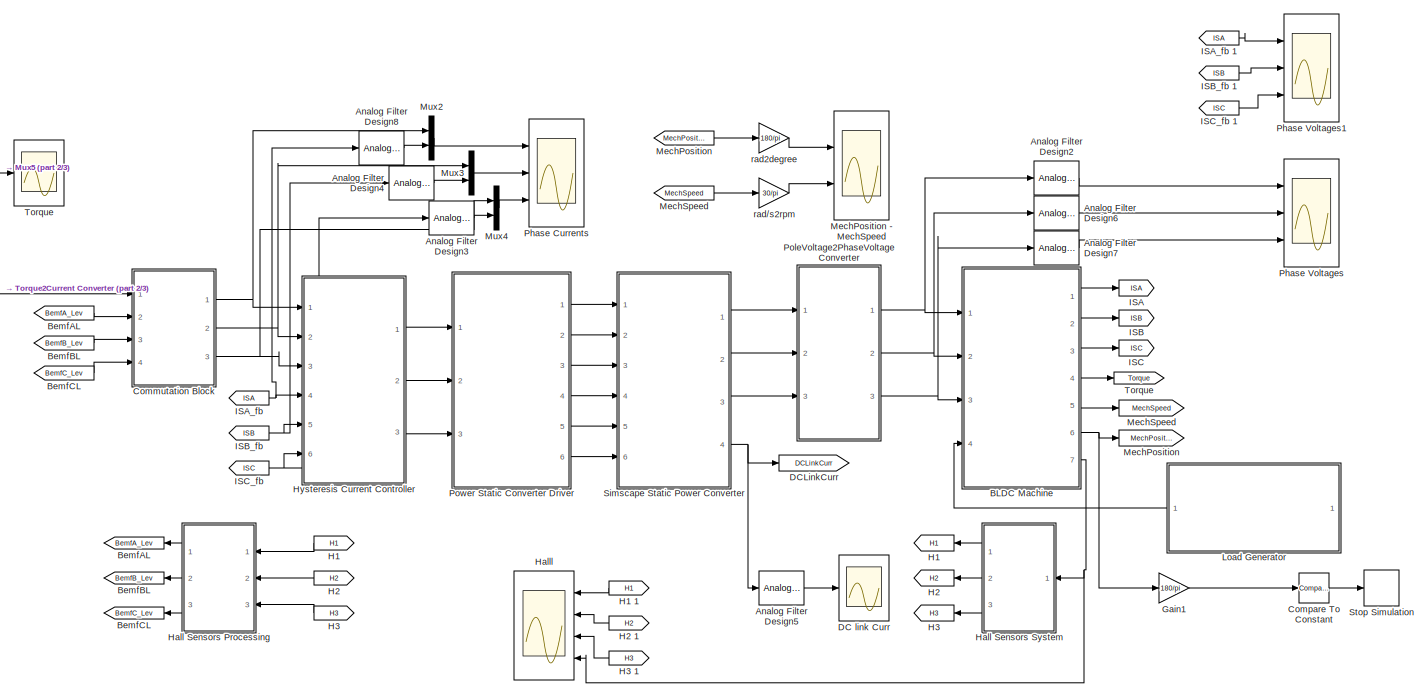
[diagram: root canvas - part 1/3, most of the canvas]
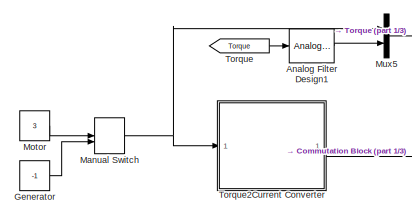
[diagram: root canvas - part 2/3, top left region]
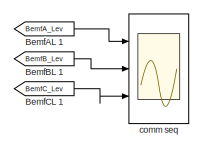
[diagram: root canvas - part 3/3, bottom center region]
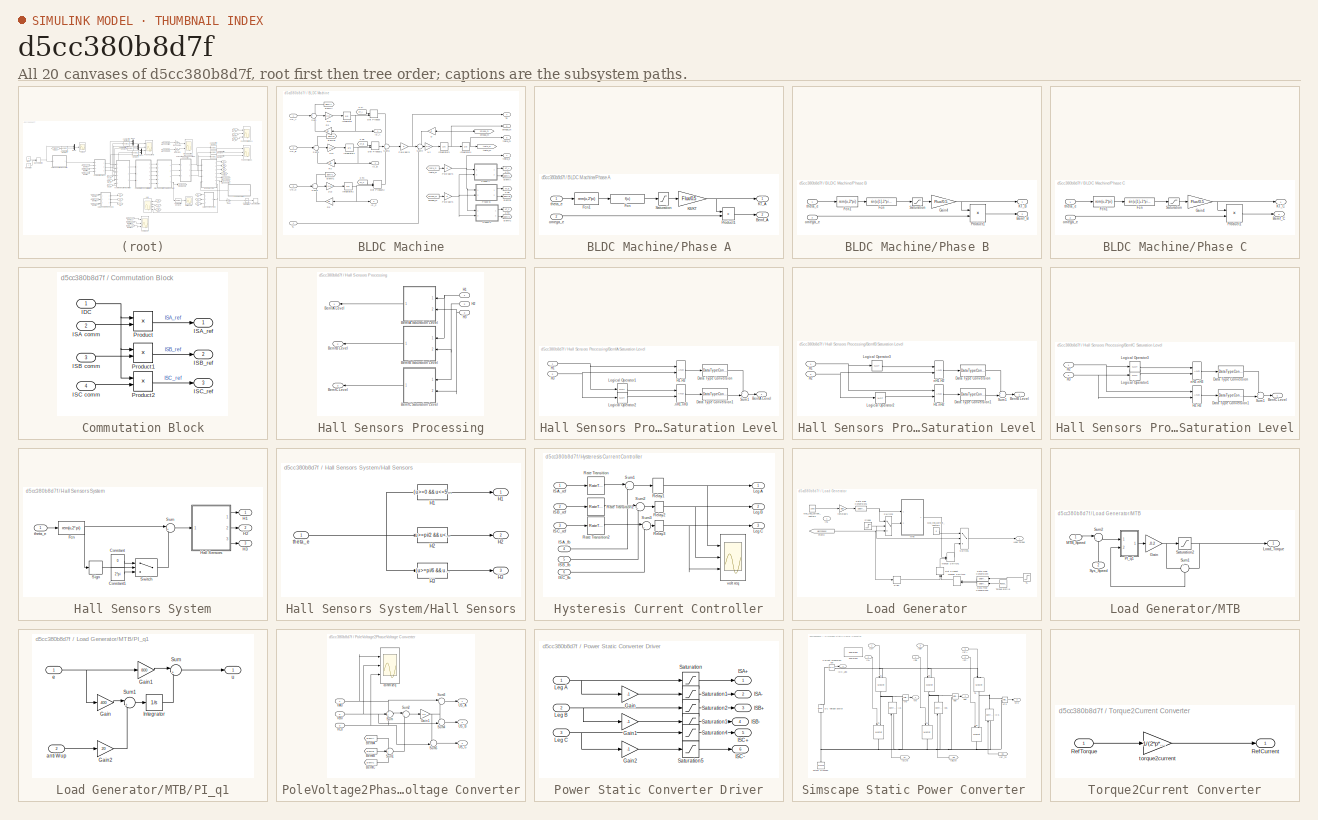
[diagram: thumbnail index - all 20 canvases of the model, root first then tree order]
MODEL slx_d5cc380b8d7f
KIND model
CONFIG AbsTol = auto
CONFIG EnableMultiTasking = off
CONFIG FixedStep = 0.000005
CONFIG MaxStep = 1e-4
CONFIG MinStep = auto
CONFIG RelTol = 1e-5
CONFIG SampleTimeConstraint = Unconstrained
CONFIG Solver = ode4
CONFIG SolverName = ode4
CONFIG StartTime = 0.0
CONFIG StopTime = 10
BLOCK [Reference] Analog Filter Design1  REF=dsparch4/Analog
Filter Design
  Ports = [1, 1]
  SourceBlock = dsparch4/Analog\nFilter Design
  SourceProductBaseCode = DS
  SourceProductName = DSP System Toolbox
  SourceType = Analog Filter Design
BLOCK [Reference] Analog Filter Design2  REF=dsparch4/Analog
Filter Design
  Ports = [1, 1]
  SourceBlock = dsparch4/Analog\nFilter Design
  SourceProductBaseCode = DS
  SourceProductName = DSP System Toolbox
  SourceType = Analog Filter Design
BLOCK [Reference] Analog Filter Design3  REF=dsparch4/Analog
Filter Design
  Ports = [1, 1]
  SourceBlock = dsparch4/Analog\nFilter Design
  SourceProductBaseCode = DS
  SourceProductName = DSP System Toolbox
  SourceType = Analog Filter Design
BLOCK [Reference] Analog Filter Design4  REF=dsparch4/Analog
Filter Design
  Ports = [1, 1]
  SourceBlock = dsparch4/Analog\nFilter Design
  SourceProductBaseCode = DS
  SourceProductName = DSP System Toolbox
  SourceType = Analog Filter Design
BLOCK [Reference] Analog Filter Design5  REF=dsparch4/Analog
Filter Design
  Ports = [1, 1]
  SourceBlock = dsparch4/Analog\nFilter Design
  SourceProductBaseCode = DS
  SourceProductName = DSP System Toolbox
  SourceType = Analog Filter Design
BLOCK [Reference] Analog Filter Design6  REF=dsparch4/Analog
Filter Design
  Ports = [1, 1]
  SourceBlock = dsparch4/Analog\nFilter Design
  SourceProductBaseCode = DS
  SourceProductName = DSP System Toolbox
  SourceType = Analog Filter Design
BLOCK [Reference] Analog Filter Design7  REF=dsparch4/Analog
Filter Design
  Ports = [1, 1]
  SourceBlock = dsparch4/Analog\nFilter Design
  SourceProductBaseCode = DS
  SourceProductName = DSP System Toolbox
  SourceType = Analog Filter Design
BLOCK [Reference] Analog Filter Design8  REF=dsparch4/Analog
Filter Design
  Ports = [1, 1]
  SourceBlock = dsparch4/Analog\nFilter Design
  SourceProductBaseCode = DS
  SourceProductName = DSP System Toolbox
  SourceType = Analog Filter Design
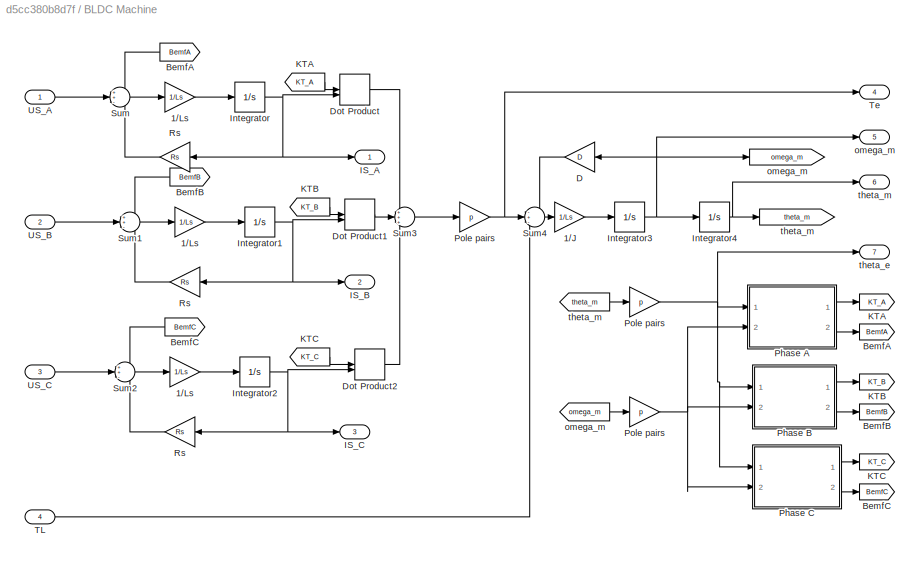
BLOCK [SubSystem] BLDC Machine
  Ports = [4, 7]
  RequestExecContextInheritance = off
BLOCK [Gain] BLDC Machine/1//J
  Gain = 1/Ls
  OutDataTypeStr = Inherit: Inherit via internal rule
  ParamDataTypeStr = Inherit: Inherit via internal rule
  SaturateOnIntegerOverflow = off
BLOCK [Gain] BLDC Machine/1//Ls
  Gain = 1/Ls
  OutDataTypeStr = Inherit: Inherit via internal rule
  ParamDataTypeStr = Inherit: Inherit via internal rule
  SaturateOnIntegerOverflow = off
BLOCK [Gain] BLDC Machine/1//Ls 
  Gain = 1/Ls
  OutDataTypeStr = Inherit: Inherit via internal rule
  ParamDataTypeStr = Inherit: Inherit via internal rule
  SaturateOnIntegerOverflow = off
BLOCK [Gain] BLDC Machine/1//Ls  
  Gain = 1/Ls
  OutDataTypeStr = Inherit: Inherit via internal rule
  ParamDataTypeStr = Inherit: Inherit via internal rule
  SaturateOnIntegerOverflow = off
BLOCK [Goto] BLDC Machine/BemfA 
  GotoTag = BemfA
  TagVisibility = global
BLOCK [From] BLDC Machine/BemfA  
  GotoTag = BemfA
  TagVisibility = global
BLOCK [Goto] BLDC Machine/BemfB 
  GotoTag = BemfB
  TagVisibility = global
BLOCK [From] BLDC Machine/BemfB  
  GotoTag = BemfB
  TagVisibility = global
BLOCK [Goto] BLDC Machine/BemfC 
  GotoTag = BemfC
  TagVisibility = global
BLOCK [From] BLDC Machine/BemfC  
  GotoTag = BemfC
  TagVisibility = global
BLOCK [Gain] BLDC Machine/D
  Gain = D
  OutDataTypeStr = Inherit: Inherit via internal rule
  ParamDataTypeStr = Inherit: Inherit via internal rule
  SaturateOnIntegerOverflow = off
BLOCK [DotProduct] BLDC Machine/Dot Product
  OutDataTypeStr = Inherit: Inherit via internal rule
BLOCK [DotProduct] BLDC Machine/Dot Product1
  OutDataTypeStr = Inherit: Inherit via internal rule
BLOCK [DotProduct] BLDC Machine/Dot Product2
  OutDataTypeStr = Inherit: Inherit via internal rule
BLOCK [Outport] BLDC Machine/IS_A
  IconDisplay = Port number
BLOCK [Outport] BLDC Machine/IS_B
  IconDisplay = Port number
  Port = 2
BLOCK [Outport] BLDC Machine/IS_C
  IconDisplay = Port number
  Port = 3
BLOCK [Integrator] BLDC Machine/Integrator
  Ports = [1, 1]
BLOCK [Integrator] BLDC Machine/Integrator1
  Ports = [1, 1]
BLOCK [Integrator] BLDC Machine/Integrator2
  Ports = [1, 1]
BLOCK [Integrator] BLDC Machine/Integrator3
  Ports = [1, 1]
BLOCK [Integrator] BLDC Machine/Integrator4
  Ports = [1, 1]
BLOCK [From] BLDC Machine/KTA
  GotoTag = KT_A
  TagVisibility = global
BLOCK [Goto] BLDC Machine/KTA 
  GotoTag = KT_A
  TagVisibility = global
BLOCK [Goto] BLDC Machine/KTB
  GotoTag = KT_B
  TagVisibility = global
BLOCK [From] BLDC Machine/KTB 
  GotoTag = KT_B
  TagVisibility = global
BLOCK [Goto] BLDC Machine/KTC
  GotoTag = KT_C
  TagVisibility = global
BLOCK [From] BLDC Machine/KTC 
  GotoTag = KT_C
  TagVisibility = global
BLOCK [SubSystem] BLDC Machine/Phase A
  Ports = [2, 2]
  RequestExecContextInheritance = off
BLOCK [Outport] BLDC Machine/Phase A/Bemf_A
  IconDisplay = Port number
  Port = 2
BLOCK [Fcn] BLDC Machine/Phase A/Fcn
BLOCK [Fcn] BLDC Machine/Phase A/Fcn1
  Expr = rem(u,2*pi)
BLOCK [Gain] BLDC Machine/Phase A/KE//KT
  Gain = Flux/0.5
BLOCK [Outport] BLDC Machine/Phase A/KT_A
  IconDisplay = Port number
BLOCK [Product] BLDC Machine/Phase A/Product1
  InputSameDT = off
  Ports = [2, 1]
  RndMeth = Floor
BLOCK [Saturate] BLDC Machine/Phase A/Saturation
  InputPortMap = u0
  Ports = [1, 1]
BLOCK [Inport] BLDC Machine/Phase A/omega_e
  IconDisplay = Port number
  Port = 2
BLOCK [Inport] BLDC Machine/Phase A/theta_e
  IconDisplay = Port number
BLOCK [SubSystem] BLDC Machine/Phase B
  Ports = [2, 2]
  RequestExecContextInheritance = off
BLOCK [Outport] BLDC Machine/Phase B/Bemf_B
  IconDisplay = Port number
  Port = 2
BLOCK [Fcn] BLDC Machine/Phase B/Fcn
  Expr = sin(u[1]-2*pi/3)
BLOCK [Fcn] BLDC Machine/Phase B/Fcn1
  Expr = rem(u,2*pi)
BLOCK [Gain] BLDC Machine/Phase B/Gain4
  Gain = Flux/0.5
BLOCK [Outport] BLDC Machine/Phase B/KT_B
  IconDisplay = Port number
BLOCK [Product] BLDC Machine/Phase B/Product1
  InputSameDT = off
  Ports = [2, 1]
  RndMeth = Floor
BLOCK [Saturate] BLDC Machine/Phase B/Saturation
  InputPortMap = u0
  Ports = [1, 1]
BLOCK [Inport] BLDC Machine/Phase B/omega_e
  IconDisplay = Port number
  Port = 2
BLOCK [Inport] BLDC Machine/Phase B/theta_e
  IconDisplay = Port number
BLOCK [SubSystem] BLDC Machine/Phase C
  Ports = [2, 2]
  RequestExecContextInheritance = off
BLOCK [Outport] BLDC Machine/Phase C/Bemf_C
  IconDisplay = Port number
  Port = 2
BLOCK [Fcn] BLDC Machine/Phase C/Fcn
  Expr = sin(u[1]+2*pi/3)
BLOCK [Fcn] BLDC Machine/Phase C/Fcn1
  Expr = rem(u,2*pi)
BLOCK [Gain] BLDC Machine/Phase C/Gain4
  Gain = Flux/0.5
BLOCK [Outport] BLDC Machine/Phase C/KT_C
  IconDisplay = Port number
BLOCK [Product] BLDC Machine/Phase C/Product1
  InputSameDT = off
  Ports = [2, 1]
  RndMeth = Floor
BLOCK [Saturate] BLDC Machine/Phase C/Saturation
  InputPortMap = u0
  Ports = [1, 1]
BLOCK [Inport] BLDC Machine/Phase C/omega_e
  IconDisplay = Port number
  Port = 2
BLOCK [Inport] BLDC Machine/Phase C/theta_e
  IconDisplay = Port number
BLOCK [Gain] BLDC Machine/Pole pairs
  Gain = p
  OutDataTypeStr = Inherit: Inherit via internal rule
  ParamDataTypeStr = Inherit: Inherit via internal rule
  SaturateOnIntegerOverflow = off
BLOCK [Gain] BLDC Machine/Pole pairs  
  Gain = p
  OutDataTypeStr = Inherit: Inherit via internal rule
  ParamDataTypeStr = Inherit: Inherit via internal rule
  SaturateOnIntegerOverflow = off
BLOCK [Gain] BLDC Machine/Pole pairs   
  Gain = p
  OutDataTypeStr = Inherit: Inherit via internal rule
  ParamDataTypeStr = Inherit: Inherit via internal rule
  SaturateOnIntegerOverflow = off
BLOCK [Gain] BLDC Machine/Rs
  Gain = Rs
  OutDataTypeStr = Inherit: Inherit via internal rule
  ParamDataTypeStr = Inherit: Inherit via internal rule
  SaturateOnIntegerOverflow = off
BLOCK [Gain] BLDC Machine/Rs 
  Gain = Rs
  OutDataTypeStr = Inherit: Inherit via internal rule
  ParamDataTypeStr = Inherit: Inherit via internal rule
  SaturateOnIntegerOverflow = off
BLOCK [Gain] BLDC Machine/Rs  
  Gain = Rs
  OutDataTypeStr = Inherit: Inherit via internal rule
  ParamDataTypeStr = Inherit: Inherit via internal rule
  SaturateOnIntegerOverflow = off
BLOCK [Sum] BLDC Machine/Sum
  IconShape = round
  InputSameDT = off
  Inputs = ++-
  OutDataTypeStr = Inherit: Inherit via internal rule
  Ports = [3, 1]
  SaturateOnIntegerOverflow = off
BLOCK [Sum] BLDC Machine/Sum1
  IconShape = round
  InputSameDT = off
  Inputs = ++-
  OutDataTypeStr = Inherit: Inherit via internal rule
  Ports = [3, 1]
  SaturateOnIntegerOverflow = off
BLOCK [Sum] BLDC Machine/Sum2
  IconShape = round
  InputSameDT = off
  Inputs = ++-
  OutDataTypeStr = Inherit: Inherit via internal rule
  Ports = [3, 1]
  SaturateOnIntegerOverflow = off
BLOCK [Sum] BLDC Machine/Sum3
  IconShape = round
  InputSameDT = off
  Inputs = +++
  OutDataTypeStr = Inherit: Inherit via internal rule
  Ports = [3, 1]
  SaturateOnIntegerOverflow = off
BLOCK [Sum] BLDC Machine/Sum4
  IconShape = round
  InputSameDT = off
  Inputs = -+-
  OutDataTypeStr = Inherit: Inherit via internal rule
  Ports = [3, 1]
  SaturateOnIntegerOverflow = off
BLOCK [Inport] BLDC Machine/TL
  IconDisplay = Port number
  Port = 4
BLOCK [Outport] BLDC Machine/Te
  IconDisplay = Port number
  Port = 4
BLOCK [Inport] BLDC Machine/US_A
  IconDisplay = Port number
BLOCK [Inport] BLDC Machine/US_B
  IconDisplay = Port number
  Port = 2
BLOCK [Inport] BLDC Machine/US_C
  IconDisplay = Port number
  Port = 3
BLOCK [Goto] BLDC Machine/omega_m
  GotoTag = omega_m
  TagVisibility = global
BLOCK [From] BLDC Machine/omega_m 
  GotoTag = omega_m
  TagVisibility = global
BLOCK [Outport] BLDC Machine/omega_m  
  IconDisplay = Port number
  Port = 5
BLOCK [Outport] BLDC Machine/theta_e
  IconDisplay = Port number
  Port = 7
BLOCK [Goto] BLDC Machine/theta_m
  GotoTag = theta_m
  TagVisibility = global
BLOCK [Outport] BLDC Machine/theta_m 
  IconDisplay = Port number
  Port = 6
BLOCK [From] BLDC Machine/theta_m  
  GotoTag = theta_m
  TagVisibility = global
BLOCK [Goto] BemfAL
  GotoTag = BemfA_Lev
  TagVisibility = global
BLOCK [From] BemfAL 
  GotoTag = BemfA_Lev
  TagVisibility = global
BLOCK [From] BemfAL 1
  GotoTag = BemfA_Lev
  TagVisibility = global
BLOCK [Goto] BemfBL
  GotoTag = BemfB_Lev
  TagVisibility = global
BLOCK [From] BemfBL 
  GotoTag = BemfB_Lev
  TagVisibility = global
BLOCK [From] BemfBL 1
  GotoTag = BemfB_Lev
  TagVisibility = global
BLOCK [Goto] BemfCL
  GotoTag = BemfC_Lev
  TagVisibility = global
BLOCK [From] BemfCL 
  GotoTag = BemfC_Lev
  TagVisibility = global
BLOCK [From] BemfCL 1
  GotoTag = BemfC_Lev
  TagVisibility = global
BLOCK [SubSystem] Commutation Block
  Ports = [4, 3]
  RequestExecContextInheritance = off
BLOCK [Inport] Commutation Block/IDC
  IconDisplay = Port number
BLOCK [Inport] Commutation Block/ISA comm
  IconDisplay = Port number
  Port = 2
BLOCK [Outport] Commutation Block/ISA_ref
  IconDisplay = Port number
BLOCK [Inport] Commutation Block/ISB comm
  IconDisplay = Port number
  Port = 3
BLOCK [Outport] Commutation Block/ISB_ref
  IconDisplay = Port number
  Port = 2
BLOCK [Inport] Commutation Block/ISC comm
  IconDisplay = Port number
  Port = 4
BLOCK [Outport] Commutation Block/ISC_ref
  IconDisplay = Port number
  Port = 3
BLOCK [Product] Commutation Block/Product
  InputSameDT = off
  OutDataTypeStr = Inherit: Inherit via internal rule
  Ports = [2, 1]
  RndMeth = Floor
  SaturateOnIntegerOverflow = off
BLOCK [Product] Commutation Block/Product1
  InputSameDT = off
  OutDataTypeStr = Inherit: Inherit via internal rule
  Ports = [2, 1]
  RndMeth = Floor
  SaturateOnIntegerOverflow = off
BLOCK [Product] Commutation Block/Product2
  InputSameDT = off
  OutDataTypeStr = Inherit: Inherit via internal rule
  Ports = [2, 1]
  RndMeth = Floor
  SaturateOnIntegerOverflow = off
BLOCK [Reference] Compare To Constant  REF=simulink/Logic and Bit
Operations/Compare
To Constant
  Ports = [1, 1]
  SourceBlock = simulink/Logic and Bit\nOperations/Compare\nTo Constant
  SourceProductBaseCode = SL
  SourceProductName = Simulink
  SourceType = Compare To Constant
BLOCK [Scope] DC link Curr
  Floating = off
  NumInputPorts = 1
  Ports = [1]
  ScopeSpecificationString = Simulink.scopes.TimeScopeBlockCfg('CurrentConfiguration', extmgr.ConfigurationSet(extmgr.Configuration('Core','General UI',true),extmgr.Configuration('Core','Source UI',true),extmgr.Configuration('Sources','WiredSimulink',true,'DataLoggingVariableName','ScopeData1'),extmgr.Configuration('Visuals','Time Domain',true,'SerializedDisplays',{struct('MinYLimReal','-0.07852','MaxYLimReal','0.09977','YLab...<+1505ch>
BLOCK [Goto] DCLinkCurr
  GotoTag = DCLinkCurr
  TagVisibility = global
BLOCK [Gain] Gain1
  Gain = 180/pi
  OutDataTypeStr = Inherit: Inherit via internal rule
  ParamDataTypeStr = Inherit: Inherit via internal rule
  SaturateOnIntegerOverflow = off
BLOCK [Constant] Generator
  Value = -1
BLOCK [Goto] H1
  GotoTag = H1
  TagVisibility = global
BLOCK [From] H1  
  GotoTag = H1
  TagVisibility = global
BLOCK [From] H1  1
  GotoTag = H1
  TagVisibility = global
BLOCK [Goto] H2
  GotoTag = H2
  TagVisibility = global
BLOCK [From] H2  
  GotoTag = H2
  TagVisibility = global
BLOCK [From] H2  1
  GotoTag = H2
  TagVisibility = global
BLOCK [Goto] H3
  GotoTag = H3
  TagVisibility = global
BLOCK [From] H3   
  GotoTag = H3
  TagVisibility = global
BLOCK [From] H3   1
  GotoTag = H3
  TagVisibility = global
BLOCK [SubSystem] Hall Sensors Processing
  Ports = [3, 3]
  RequestExecContextInheritance = off
BLOCK [Outport] Hall Sensors Processing/BemfA Level
  IconDisplay = Port number
BLOCK [SubSystem] Hall Sensors Processing/BemfA Saturation Level
  Ports = [2, 1]
  RequestExecContextInheritance = off
BLOCK [Logic] Hall Sensors Processing/BemfA Saturation Level/.nH1.nH3
  AllPortsSameDT = off
  OutDataTypeStr = boolean
  Ports = [2, 1]
BLOCK [Outport] Hall Sensors Processing/BemfA Saturation Level/BenfA Level 
  IconDisplay = Port number
BLOCK [DataTypeConversion] Hall Sensors Processing/BemfA Saturation Level/Data Type Conversion
  RndMeth = Floor
  SaturateOnIntegerOverflow = off
BLOCK [DataTypeConversion] Hall Sensors Processing/BemfA Saturation Level/Data Type Conversion1
  RndMeth = Floor
  SaturateOnIntegerOverflow = off
BLOCK [Inport] Hall Sensors Processing/BemfA Saturation Level/H1
  IconDisplay = Port number
BLOCK [Logic] Hall Sensors Processing/BemfA Saturation Level/H1.H3 
  AllPortsSameDT = off
  OutDataTypeStr = boolean
  Ports = [2, 1]
BLOCK [Inport] Hall Sensors Processing/BemfA Saturation Level/H3
  IconDisplay = Port number
  Port = 2
BLOCK [Logic] Hall Sensors Processing/BemfA Saturation Level/Logical Operator1
  AllPortsSameDT = off
  Operator = NOT
  OutDataTypeStr = boolean
  Ports = [1, 1]
BLOCK [Logic] Hall Sensors Processing/BemfA Saturation Level/Logical Operator2
  AllPortsSameDT = off
  Operator = NOT
  OutDataTypeStr = boolean
  Ports = [1, 1]
BLOCK [Sum] Hall Sensors Processing/BemfA Saturation Level/Sum1
  IconShape = round
  InputSameDT = off
  Inputs = +-|
  OutDataTypeStr = Inherit: Inherit via internal rule
  Ports = [2, 1]
  SaturateOnIntegerOverflow = off
BLOCK [Outport] Hall Sensors Processing/BemfB Level
  IconDisplay = Port number
  Port = 2
BLOCK [SubSystem] Hall Sensors Processing/BemfB Saturation Level
  Ports = [2, 1]
  RequestExecContextInheritance = off
BLOCK [Outport] Hall Sensors Processing/BemfB Saturation Level/BenfB Level 
  IconDisplay = Port number
BLOCK [DataTypeConversion] Hall Sensors Processing/BemfB Saturation Level/Data Type Conversion
  RndMeth = Floor
  SaturateOnIntegerOverflow = off
BLOCK [DataTypeConversion] Hall Sensors Processing/BemfB Saturation Level/Data Type Conversion1
  RndMeth = Floor
  SaturateOnIntegerOverflow = off
BLOCK [Inport] Hall Sensors Processing/BemfB Saturation Level/H1
  IconDisplay = Port number
BLOCK [Logic] Hall Sensors Processing/BemfB Saturation Level/H1.nH2
  AllPortsSameDT = off
  OutDataTypeStr = boolean
  Ports = [2, 1]
BLOCK [Inport] Hall Sensors Processing/BemfB Saturation Level/H2
  IconDisplay = Port number
  Port = 2
BLOCK [Logic] Hall Sensors Processing/BemfB Saturation Level/Logical Operator2
  AllPortsSameDT = off
  Operator = NOT
  OutDataTypeStr = boolean
  Ports = [1, 1]
BLOCK [Logic] Hall Sensors Processing/BemfB Saturation Level/Logical Operator3
  AllPortsSameDT = off
  Operator = NOT
  OutDataTypeStr = boolean
  Ports = [1, 1]
BLOCK [Sum] Hall Sensors Processing/BemfB Saturation Level/Sum1
  IconShape = round
  InputSameDT = off
  Inputs = +-|
  OutDataTypeStr = Inherit: Inherit via internal rule
  Ports = [2, 1]
  SaturateOnIntegerOverflow = off
BLOCK [Logic] Hall Sensors Processing/BemfB Saturation Level/nH1.H2 
  AllPortsSameDT = off
  OutDataTypeStr = boolean
  Ports = [2, 1]
BLOCK [Outport] Hall Sensors Processing/BemfC Level
  IconDisplay = Port number
  Port = 3
BLOCK [SubSystem] Hall Sensors Processing/BemfC Saturation Level
  Ports = [2, 1]
  RequestExecContextInheritance = off
BLOCK [Outport] Hall Sensors Processing/BemfC Saturation Level/BenfC Level 
  IconDisplay = Port number
BLOCK [DataTypeConversion] Hall Sensors Processing/BemfC Saturation Level/Data Type Conversion
  RndMeth = Floor
  SaturateOnIntegerOverflow = off
BLOCK [DataTypeConversion] Hall Sensors Processing/BemfC Saturation Level/Data Type Conversion1
  RndMeth = Floor
  SaturateOnIntegerOverflow = off
BLOCK [Inport] Hall Sensors Processing/BemfC Saturation Level/H2
  IconDisplay = Port number
BLOCK [Logic] Hall Sensors Processing/BemfC Saturation Level/H2.H3
  AllPortsSameDT = off
  OutDataTypeStr = boolean
  Ports = [2, 1]
BLOCK [Inport] Hall Sensors Processing/BemfC Saturation Level/H3
  IconDisplay = Port number
  Port = 2
BLOCK [Logic] Hall Sensors Processing/BemfC Saturation Level/Logical Operator1
  AllPortsSameDT = off
  Operator = NOT
  OutDataTypeStr = boolean
  Ports = [1, 1]
BLOCK [Logic] Hall Sensors Processing/BemfC Saturation Level/Logical Operator3
  AllPortsSameDT = off
  Operator = NOT
  OutDataTypeStr = boolean
  Ports = [1, 1]
BLOCK [Sum] Hall Sensors Processing/BemfC Saturation Level/Sum1
  IconShape = round
  InputSameDT = off
  Inputs = +-|
  OutDataTypeStr = Inherit: Inherit via internal rule
  Ports = [2, 1]
  SaturateOnIntegerOverflow = off
BLOCK [Logic] Hall Sensors Processing/BemfC Saturation Level/nH2.nH3 
  AllPortsSameDT = off
  OutDataTypeStr = boolean
  Ports = [2, 1]
BLOCK [Inport] Hall Sensors Processing/H1
  IconDisplay = Port number
BLOCK [Inport] Hall Sensors Processing/H2
  IconDisplay = Port number
  Port = 2
BLOCK [Inport] Hall Sensors Processing/H3
  IconDisplay = Port number
  Port = 3
BLOCK [SubSystem] Hall Sensors System
  Ports = [1, 3]
  RequestExecContextInheritance = off
BLOCK [Constant] Hall Sensors System/Constant
  Value = 0
BLOCK [Constant] Hall Sensors System/Constant1
  Value = 2*pi
BLOCK [Fcn] Hall Sensors System/Fcn
  Expr = rem(u,2*pi)
BLOCK [Outport] Hall Sensors System/H1
  IconDisplay = Port number
BLOCK [Outport] Hall Sensors System/H2
  IconDisplay = Port number
  Port = 2
BLOCK [Outport] Hall Sensors System/H3
  IconDisplay = Port number
  Port = 3
BLOCK [SubSystem] Hall Sensors System/Hall Sensors
  Ports = [1, 3]
  RequestExecContextInheritance = off
BLOCK [Fcn] Hall Sensors System/Hall Sensors/H1
  Expr = (u>=0 && u<=5*pi/6) || (u>=11*pi/6 && u<=2*pi)
BLOCK [Outport] Hall Sensors System/Hall Sensors/H1 
  IconDisplay = Port number
BLOCK [Fcn] Hall Sensors System/Hall Sensors/H2
  Expr = u>=pi/2 && u<=3*pi/2
BLOCK [Outport] Hall Sensors System/Hall Sensors/H2 
  IconDisplay = Port number
  Port = 2
BLOCK [Fcn] Hall Sensors System/Hall Sensors/H3
  Expr = (u>=pi/6 && u<=7*pi/6)
BLOCK [Outport] Hall Sensors System/Hall Sensors/H3 
  IconDisplay = Port number
  Port = 3
BLOCK [Inport] Hall Sensors System/Hall Sensors/theta_e
  IconDisplay = Port number
BLOCK [Signum] Hall Sensors System/Sign
BLOCK [Sum] Hall Sensors System/Sum
  IconShape = round
  InputSameDT = off
  Inputs = |++
  OutDataTypeStr = Inherit: Inherit via internal rule
  Ports = [2, 1]
  SaturateOnIntegerOverflow = off
BLOCK [Switch] Hall Sensors System/Switch
  InputSameDT = off
  SaturateOnIntegerOverflow = off
BLOCK [Inport] Hall Sensors System/theta_e
  IconDisplay = Port number
BLOCK [Scope] Halll
  Floating = off
  NumInputPorts = 4
  Ports = [4]
  ScopeSpecificationString = Simulink.scopes.TimeScopeBlockCfg('CurrentConfiguration', extmgr.ConfigurationSet(extmgr.Configuration('Core','General UI',true),extmgr.Configuration('Core','Source UI',true),extmgr.Configuration('Sources','WiredSimulink',true,'DataLoggingVariableName','ScopeData1'),extmgr.Configuration('Visuals','Time Domain',true,'SerializedDisplays',{struct('MinYLimReal','-0.125','MaxYLimReal','1.125','YLabelRe...<+3484ch>
BLOCK [SubSystem] Hysteresis Current Controller
  Ports = [6, 3]
  RequestExecContextInheritance = off
BLOCK [Inport] Hysteresis Current Controller/ISA_fb
  IconDisplay = Port number
  Port = 4
BLOCK [Inport] Hysteresis Current Controller/ISA_ref
  IconDisplay = Port number
BLOCK [Inport] Hysteresis Current Controller/ISB_fb
  IconDisplay = Port number
  Port = 5
BLOCK [Inport] Hysteresis Current Controller/ISB_ref
  IconDisplay = Port number
  Port = 2
BLOCK [Inport] Hysteresis Current Controller/ISC_fb
  IconDisplay = Port number
  Port = 6
BLOCK [Inport] Hysteresis Current Controller/ISC_ref
  IconDisplay = Port number
  Port = 3
BLOCK [Outport] Hysteresis Current Controller/Leg A
  IconDisplay = Port number
BLOCK [Outport] Hysteresis Current Controller/Leg B
  IconDisplay = Port number
  Port = 2
BLOCK [Outport] Hysteresis Current Controller/Leg C
  IconDisplay = Port number
  Port = 3
BLOCK [RateTransition] Hysteresis Current Controller/Rate Transition
  OutPortSampleTime = 0.000025
BLOCK [RateTransition] Hysteresis Current Controller/Rate Transition1
  OutPortSampleTime = 0.000025
BLOCK [RateTransition] Hysteresis Current Controller/Rate Transition2
  OutPortSampleTime = 0.000025
BLOCK [Relay] Hysteresis Current Controller/Relay1
  OffOutputValue = -1
  OffSwitchValue = -h/2
  OnSwitchValue = h/2
BLOCK [Relay] Hysteresis Current Controller/Relay2
  OffOutputValue = -1
  OffSwitchValue = -h/2
  OnSwitchValue = h/2
BLOCK [Relay] Hysteresis Current Controller/Relay3
  OffOutputValue = -1
  OffSwitchValue = -h/2
  OnSwitchValue = h/2
BLOCK [Sum] Hysteresis Current Controller/Sum1
  IconShape = round
  InputSameDT = off
  Inputs = |+-
  OutDataTypeStr = Inherit: Inherit via internal rule
  Ports = [2, 1]
  SaturateOnIntegerOverflow = off
BLOCK [Sum] Hysteresis Current Controller/Sum2
  IconShape = round
  InputSameDT = off
  Inputs = |+-
  OutDataTypeStr = Inherit: Inherit via internal rule
  Ports = [2, 1]
  SaturateOnIntegerOverflow = off
BLOCK [Sum] Hysteresis Current Controller/Sum3
  IconShape = round
  InputSameDT = off
  Inputs = |+-
  OutDataTypeStr = Inherit: Inherit via internal rule
  Ports = [2, 1]
  SaturateOnIntegerOverflow = off
BLOCK [Scope] Hysteresis Current Controller/volt req
  Floating = off
  NumInputPorts = 3
  Ports = [3]
  ScopeSpecificationString = Simulink.scopes.TimeScopeBlockCfg('CurrentConfiguration', extmgr.ConfigurationSet(extmgr.Configuration('Core','General UI',true),extmgr.Configuration('Core','Source UI',true),extmgr.Configuration('Sources','WiredSimulink',true,'DataLoggingVariableName','ScopeData2'),extmgr.Configuration('Visuals','Time Domain',true,'SerializedDisplays',{struct('MinYLimReal','-1.25','MaxYLimReal','1.25','YLabelReal...<+2744ch>
BLOCK [Goto] ISA
  GotoTag = ISA
  TagVisibility = global
BLOCK [From] ISA_fb 
  GotoTag = ISA
  TagVisibility = global
BLOCK [From] ISA_fb 1
  GotoTag = ISA
  TagVisibility = global
BLOCK [Goto] ISB
  GotoTag = ISB
  TagVisibility = global
BLOCK [From] ISB_fb 
  GotoTag = ISB
  TagVisibility = global
BLOCK [From] ISB_fb 1
  GotoTag = ISB
  TagVisibility = global
BLOCK [Goto] ISC
  GotoTag = ISC
  TagVisibility = global
BLOCK [From] ISC_fb 
  GotoTag = ISC
  TagVisibility = global
BLOCK [From] ISC_fb 1
  GotoTag = ISC
  TagVisibility = global
BLOCK [SubSystem] Load Generator
  Ports = [1, 1]
  RequestExecContextInheritance = off
BLOCK [DataTypeConversion] Load Generator/Data Type Conversion1
  OutDataTypeStr = double
  RndMeth = Floor
  SaturateOnIntegerOverflow = off
BLOCK [DataTypeConversion] Load Generator/Data Type Conversion2
  RndMeth = Floor
  SaturateOnIntegerOverflow = off
BLOCK [DataTypeConversion] Load Generator/Data Type Conversion4
  RndMeth = Floor
  SaturateOnIntegerOverflow = off
BLOCK [DotProduct] Load Generator/Dot Product
  OutDataTypeStr = Inherit: Inherit via internal rule
BLOCK [From] Load Generator/From3
  CloseFcn = tagdialog Close
  GotoTag = MechSpeed
  TagVisibility = global
BLOCK [Inport] Load Generator/In1
  IconDisplay = Port number
BLOCK [Outport] Load Generator/Load Torque 
  IconDisplay = Port number
BLOCK [SubSystem] Load Generator/MTB
  Ports = [2, 1]
  RequestExecContextInheritance = off
BLOCK [Gain] Load Generator/MTB/Gain
  Gain = -0.2
  OutDataTypeStr = Inherit: Inherit via internal rule
  ParamDataTypeStr = Inherit: Inherit via internal rule
  SaturateOnIntegerOverflow = off
BLOCK [Outport] Load Generator/MTB/Load_Torque
  IconDisplay = Port number
BLOCK [Inport] Load Generator/MTB/MTB_Speed
  IconDisplay = Port number
BLOCK [SubSystem] Load Generator/MTB/PI_q1
  Ports = [2, 1]
  RequestExecContextInheritance = off
BLOCK [Gain] Load Generator/MTB/PI_q1/Gain
  Gain = 400
  OutDataTypeStr = Inherit: Inherit via internal rule
  ParamDataTypeStr = Inherit: Inherit via internal rule
  SaturateOnIntegerOverflow = off
BLOCK [Gain] Load Generator/MTB/PI_q1/Gain1
  Gain = 800
  OutDataTypeStr = Inherit: Inherit via internal rule
  ParamDataTypeStr = Inherit: Inherit via internal rule
  SaturateOnIntegerOverflow = off
BLOCK [Gain] Load Generator/MTB/PI_q1/Gain2
  Gain = 20
  OutDataTypeStr = Inherit: Inherit via internal rule
  ParamDataTypeStr = Inherit: Inherit via internal rule
  SaturateOnIntegerOverflow = off
BLOCK [Integrator] Load Generator/MTB/PI_q1/Integrator
  Ports = [1, 1]
BLOCK [Sum] Load Generator/MTB/PI_q1/Sum
  IconShape = round
  InputSameDT = off
  Inputs = |++
  OutDataTypeStr = Inherit: Inherit via internal rule
  Ports = [2, 1]
  SaturateOnIntegerOverflow = off
BLOCK [Sum] Load Generator/MTB/PI_q1/Sum1
  IconShape = round
  InputSameDT = off
  Inputs = |+-
  OutDataTypeStr = Inherit: Inherit via internal rule
  Ports = [2, 1]
  SaturateOnIntegerOverflow = off
BLOCK [Inport] Load Generator/MTB/PI_q1/anti Wup
  IconDisplay = Port number
  Port = 2
BLOCK [Inport] Load Generator/MTB/PI_q1/e
  IconDisplay = Port number
BLOCK [Outport] Load Generator/MTB/PI_q1/u
  IconDisplay = Port number
BLOCK [Saturate] Load Generator/MTB/Saturation2
  InputPortMap = u0
  LowerLimit = -100
  Ports = [1, 1]
  UpperLimit = 100
BLOCK [Sum] Load Generator/MTB/Sum1
  IconShape = round
  InputSameDT = off
  Inputs = +|-
  OutDataTypeStr = Inherit: Inherit via internal rule
  Ports = [2, 1]
  SaturateOnIntegerOverflow = off
BLOCK [Sum] Load Generator/MTB/Sum2
  IconShape = round
  InputSameDT = off
  Inputs = |+-
  OutDataTypeStr = Inherit: Inherit via internal rule
  Ports = [2, 1]
  SaturateOnIntegerOverflow = off
BLOCK [Inport] Load Generator/MTB/Sys_Speed
  IconDisplay = Port number
  Port = 2
BLOCK [ManualSwitch] Load Generator/Manual Switch1
BLOCK [ManualSwitch] Load Generator/Manual Switch4
BLOCK [Constant] Load Generator/Moc_req_current_vector2
  OutDataTypeStr = Inherit: Inherit via back propagation
  Value = 1000
BLOCK [Constant] Load Generator/Moc_req_current_vector3
  OutDataTypeStr = Inherit: Inherit via back propagation
  Value = 0
BLOCK [Signum] Load Generator/Sign
BLOCK [Step] Load Generator/Step8
  After = 0
  Before = 1
  SampleTime = 0
  Time = 0
BLOCK [Switch] Load Generator/Switch1
  InputSameDT = off
  SaturateOnIntegerOverflow = off
  Threshold = 0.5
BLOCK [Switch] Load Generator/Switch2
  InputSameDT = off
  SaturateOnIntegerOverflow = off
  Threshold = 0.5
BLOCK [Step] Load Generator/TL
  After = 10*0.5
  SampleTime = 0
  Time = 0.5
BLOCK [Reference] Load Generator/Torque profile  REF=simulink/Sources/Repeating
Sequence
  Ports = [0, 1]
  SourceBlock = simulink/Sources/Repeating\nSequence
  SourceProductBaseCode = SL
  SourceProductName = Simulink
  SourceType = Repeating table
BLOCK [Gain] Load Generator/rpm2rad//s
  Gain = pi/30
  OutDataTypeStr = Inherit: Inherit via internal rule
  ParamDataTypeStr = Inherit: Inherit via internal rule
  SaturateOnIntegerOverflow = off
BLOCK [ManualSwitch] Manual Switch
BLOCK [Goto] MechPosition
  GotoTag = MechPosition
  TagVisibility = global
BLOCK [From] MechPosition 
  GotoTag = MechPosition
  TagVisibility = global
BLOCK [Scope] MechPosition - MechSpeed
  Floating = off
  NumInputPorts = 2
  Ports = [2]
  ScopeSpecificationString = Simulink.scopes.TimeScopeBlockCfg('CurrentConfiguration', extmgr.ConfigurationSet(extmgr.Configuration('Core','General UI',true),extmgr.Configuration('Core','Source UI',true),extmgr.Configuration('Sources','WiredSimulink',true),extmgr.Configuration('Visuals','Time Domain',true,'SerializedDisplays',{struct('MinYLimReal','-12239.3684','MaxYLimReal','110154.3156','YLabelReal','','MinYLimMag','   0.00...<+2045ch>
BLOCK [Goto] MechSpeed
  GotoTag = MechSpeed
  TagVisibility = global
BLOCK [From] MechSpeed 
  GotoTag = MechSpeed
  TagVisibility = global
BLOCK [Constant] Motor
  Value = 3
BLOCK [Mux] Mux2
  DisplayOption = bar
  Inputs = 2
  Ports = [2, 1]
BLOCK [Mux] Mux3
  DisplayOption = bar
  Inputs = 2
  Ports = [2, 1]
BLOCK [Mux] Mux4
  DisplayOption = bar
  Inputs = 2
  Ports = [2, 1]
BLOCK [Mux] Mux5
  DisplayOption = bar
  Inputs = 2
  Ports = [2, 1]
BLOCK [Scope] Phase Currents
  Floating = off
  NumInputPorts = 3
  Ports = [3]
  ScopeSpecificationString = Simulink.scopes.TimeScopeBlockCfg('CurrentConfiguration', extmgr.ConfigurationSet(extmgr.Configuration('Core','General UI',true),extmgr.Configuration('Core','Source UI',true),extmgr.Configuration('Sources','WiredSimulink',true,'DataLoggingVariableName','ScopeData1'),extmgr.Configuration('Visuals','Time Domain',true,'SerializedDisplays',{struct('MinYLimReal','-2.89443','MaxYLimReal','2.89278','YLab...<+2893ch>
BLOCK [Scope] Phase Voltages
  Floating = off
  NumInputPorts = 3
  Ports = [3]
  ScopeSpecificationString = Simulink.scopes.TimeScopeBlockCfg('CurrentConfiguration', extmgr.ConfigurationSet(extmgr.Configuration('Core','General UI',true),extmgr.Configuration('Core','Source UI',true),extmgr.Configuration('Sources','WiredSimulink',true,'DataLoggingVariableName','ScopeData2'),extmgr.Configuration('Visuals','Time Domain',true,'SerializedDisplays',{struct('MinYLimReal','-16.11522','MaxYLimReal','16.12611','YL...<+2792ch>
BLOCK [Scope] Phase Voltages1
  Floating = off
  NumInputPorts = 3
  Ports = [3]
  ScopeSpecificationString = Simulink.scopes.TimeScopeBlockCfg('CurrentConfiguration', extmgr.ConfigurationSet(extmgr.Configuration('Core','General UI',true),extmgr.Configuration('Core','Source UI',true),extmgr.Configuration('Sources','WiredSimulink',true,'DataLoggingVariableName','ScopeData1'),extmgr.Configuration('Visuals','Time Domain',true,'SerializedDisplays',{struct('MinYLimReal','0.20149','MaxYLimReal','1.16879','YLabe...<+2762ch>
BLOCK [SubSystem] PoleVoltage2PhaseVoltage Converter
  Ports = [3, 3]
  RequestExecContextInheritance = off
BLOCK [From] PoleVoltage2PhaseVoltage Converter/BemfA  
  GotoTag = BemfA
  TagVisibility = global
BLOCK [From] PoleVoltage2PhaseVoltage Converter/BemfB  
  GotoTag = BemfB
  TagVisibility = global
BLOCK [From] PoleVoltage2PhaseVoltage Converter/BemfC  
  GotoTag = BemfC
  TagVisibility = global
BLOCK [Gain] PoleVoltage2PhaseVoltage Converter/Gain1
  Gain = 1/3
  OutDataTypeStr = Inherit: Inherit via internal rule
  ParamDataTypeStr = Inherit: Inherit via internal rule
  SaturateOnIntegerOverflow = off
BLOCK [Sum] PoleVoltage2PhaseVoltage Converter/Sum
  IconShape = round
  InputSameDT = off
  Inputs = +++
  OutDataTypeStr = Inherit: Inherit via internal rule
  Ports = [3, 1]
  SaturateOnIntegerOverflow = off
BLOCK [Sum] PoleVoltage2PhaseVoltage Converter/Sum1
  IconShape = round
  InputSameDT = off
  Inputs = +++
  OutDataTypeStr = Inherit: Inherit via internal rule
  Ports = [3, 1]
  SaturateOnIntegerOverflow = off
BLOCK [Sum] PoleVoltage2PhaseVoltage Converter/Sum2
  IconShape = round
  InputSameDT = off
  Inputs = |++
  OutDataTypeStr = Inherit: Inherit via internal rule
  Ports = [2, 1]
  SaturateOnIntegerOverflow = off
BLOCK [Sum] PoleVoltage2PhaseVoltage Converter/Sum3
  IconShape = round
  InputSameDT = off
  Inputs = |+-
  OutDataTypeStr = Inherit: Inherit via internal rule
  Ports = [2, 1]
  SaturateOnIntegerOverflow = off
BLOCK [Sum] PoleVoltage2PhaseVoltage Converter/Sum4
  IconShape = round
  InputSameDT = off
  Inputs = -+|
  OutDataTypeStr = Inherit: Inherit via internal rule
  Ports = [2, 1]
  SaturateOnIntegerOverflow = off
BLOCK [Sum] PoleVoltage2PhaseVoltage Converter/Sum5
  IconShape = round
  InputSameDT = off
  Inputs = -+|
  OutDataTypeStr = Inherit: Inherit via internal rule
  Ports = [2, 1]
  SaturateOnIntegerOverflow = off
BLOCK [Outport] PoleVoltage2PhaseVoltage Converter/US_A
  IconDisplay = Port number
BLOCK [Outport] PoleVoltage2PhaseVoltage Converter/US_B
  IconDisplay = Port number
  Port = 2
BLOCK [Outport] PoleVoltage2PhaseVoltage Converter/US_C
  IconDisplay = Port number
  Port = 3
BLOCK [Inport] PoleVoltage2PhaseVoltage Converter/VA0
  IconDisplay = Port number
BLOCK [Inport] PoleVoltage2PhaseVoltage Converter/VB0
  IconDisplay = Port number
  Port = 2
BLOCK [Inport] PoleVoltage2PhaseVoltage Converter/VC0
  IconDisplay = Port number
  Port = 3
BLOCK [Scope] PoleVoltage2PhaseVoltage Converter/comm seq
  Floating = off
  NumInputPorts = 3
  Ports = [3]
  ScopeSpecificationString = Simulink.scopes.TimeScopeBlockCfg('CurrentConfiguration', extmgr.ConfigurationSet(extmgr.Configuration('Core','General UI',true),extmgr.Configuration('Core','Source UI',true),extmgr.Configuration('Sources','WiredSimulink',true,'DataLoggingVariableName','ScopeData3'),extmgr.Configuration('Visuals','Time Domain',true,'SerializedDisplays',{struct('MinYLimReal','-1.25','MaxYLimReal','1.25','YLabelReal...<+2738ch>
BLOCK [SubSystem] Power Static Converter Driver
  Ports = [3, 6]
  RequestExecContextInheritance = off
BLOCK [Gain] Power Static Converter Driver/Gain
  Gain = -1
  OutDataTypeStr = Inherit: Inherit via internal rule
  ParamDataTypeStr = Inherit: Inherit via internal rule
  SaturateOnIntegerOverflow = off
BLOCK [Gain] Power Static Converter Driver/Gain1
  Gain = -1
  OutDataTypeStr = Inherit: Inherit via internal rule
  ParamDataTypeStr = Inherit: Inherit via internal rule
  SaturateOnIntegerOverflow = off
BLOCK [Gain] Power Static Converter Driver/Gain2
  Gain = -1
  OutDataTypeStr = Inherit: Inherit via internal rule
  ParamDataTypeStr = Inherit: Inherit via internal rule
  SaturateOnIntegerOverflow = off
BLOCK [Outport] Power Static Converter Driver/ISA+
  IconDisplay = Port number
BLOCK [Outport] Power Static Converter Driver/ISA-
  IconDisplay = Port number
  Port = 2
BLOCK [Outport] Power Static Converter Driver/ISB+
  IconDisplay = Port number
  Port = 3
BLOCK [Outport] Power Static Converter Driver/ISB-
  IconDisplay = Port number
  Port = 4
BLOCK [Outport] Power Static Converter Driver/ISC+
  IconDisplay = Port number
  Port = 5
BLOCK [Outport] Power Static Converter Driver/ISC-
  IconDisplay = Port number
  Port = 6
BLOCK [Inport] Power Static Converter Driver/Leg A
  IconDisplay = Port number
BLOCK [Inport] Power Static Converter Driver/Leg B
  IconDisplay = Port number
  Port = 2
BLOCK [Inport] Power Static Converter Driver/Leg C
  IconDisplay = Port number
  Port = 3
BLOCK [Saturate] Power Static Converter Driver/Saturation
  InputPortMap = u0
  LowerLimit = 0
  Ports = [1, 1]
  UpperLimit = 1
BLOCK [Saturate] Power Static Converter Driver/Saturation1
  InputPortMap = u0
  LowerLimit = 0
  Ports = [1, 1]
  UpperLimit = 1
BLOCK [Saturate] Power Static Converter Driver/Saturation2
  InputPortMap = u0
  LowerLimit = 0
  Ports = [1, 1]
  UpperLimit = 1
BLOCK [Saturate] Power Static Converter Driver/Saturation3
  InputPortMap = u0
  LowerLimit = 0
  Ports = [1, 1]
  UpperLimit = 1
BLOCK [Saturate] Power Static Converter Driver/Saturation4
  InputPortMap = u0
  LowerLimit = 0
  Ports = [1, 1]
  UpperLimit = 1
BLOCK [Saturate] Power Static Converter Driver/Saturation5
  InputPortMap = u0
  LowerLimit = 0
  Ports = [1, 1]
  UpperLimit = 1
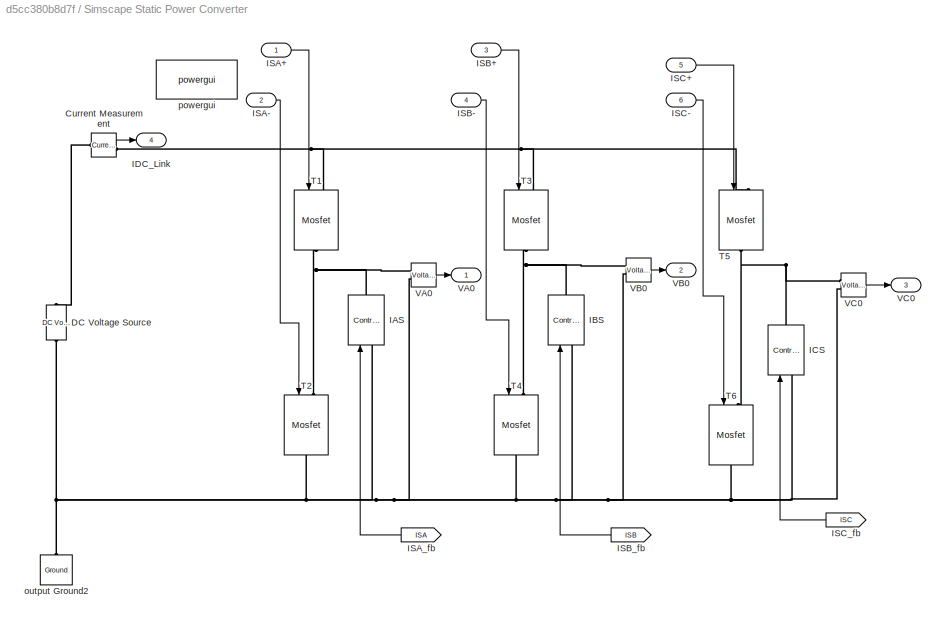
BLOCK [SubSystem] Simscape Static Power Converter 
  Ports = [6, 4]
  RequestExecContextInheritance = off
BLOCK [Reference] Simscape Static Power Converter /Current Measurement  REF=powerlib/Measurements/Current Measurement
  Ports = [0, 1, 0, 0, 0, 1, 1]
  SourceBlock = powerlib/Measurements/Current Measurement
  SourceProductBaseCode = PS
  SourceProductName = Simscape Electrical
  SourceType = Current Measurement
  UserDataPersistent = on
BLOCK [Reference] Simscape Static Power Converter /DC Voltage Source  REF=powerlib/Electrical
Sources/DC Voltage Source
  Ports = [0, 0, 0, 0, 0, 1, 1]
  SourceBlock = powerlib/Electrical\nSources/DC Voltage Source
  SourceProductBaseCode = PS
  SourceProductName = Simscape Electrical
  SourceType = DC Voltage Source
BLOCK [Reference] Simscape Static Power Converter /IAS  REF=powerlib/Electrical
Sources/Controlled Current Source
  Ports = [1, 0, 0, 0, 0, 1, 1]
  SourceBlock = powerlib/Electrical\nSources/Controlled Current Source
  SourceProductBaseCode = PS
  SourceProductName = Simscape Electrical
  SourceType = Controlled Current Source
BLOCK [Reference] Simscape Static Power Converter /IBS  REF=powerlib/Electrical
Sources/Controlled Current Source
  Ports = [1, 0, 0, 0, 0, 1, 1]
  SourceBlock = powerlib/Electrical\nSources/Controlled Current Source
  SourceProductBaseCode = PS
  SourceProductName = Simscape Electrical
  SourceType = Controlled Current Source
BLOCK [Reference] Simscape Static Power Converter /ICS  REF=powerlib/Electrical
Sources/Controlled Current Source
  Ports = [1, 0, 0, 0, 0, 1, 1]
  SourceBlock = powerlib/Electrical\nSources/Controlled Current Source
  SourceProductBaseCode = PS
  SourceProductName = Simscape Electrical
  SourceType = Controlled Current Source
BLOCK [Outport] Simscape Static Power Converter /IDC_Link
  IconDisplay = Port number
  Port = 4
BLOCK [Inport] Simscape Static Power Converter /ISA+
  IconDisplay = Port number
BLOCK [Inport] Simscape Static Power Converter /ISA-
  IconDisplay = Port number
  Port = 2
BLOCK [From] Simscape Static Power Converter /ISA_fb
  GotoTag = ISA
  TagVisibility = global
BLOCK [Inport] Simscape Static Power Converter /ISB+
  IconDisplay = Port number
  Port = 3
BLOCK [Inport] Simscape Static Power Converter /ISB-
  IconDisplay = Port number
  Port = 4
BLOCK [From] Simscape Static Power Converter /ISB_fb
  GotoTag = ISB
  TagVisibility = global
BLOCK [Inport] Simscape Static Power Converter /ISC+
  IconDisplay = Port number
  Port = 5
BLOCK [Inport] Simscape Static Power Converter /ISC-
  IconDisplay = Port number
  Port = 6
BLOCK [From] Simscape Static Power Converter /ISC_fb
  GotoTag = ISC
  TagVisibility = global
BLOCK [Reference] Simscape Static Power Converter /T1  REF=powerlib/Power
Electronics/Mosfet
  Ports = [1, 0, 0, 0, 0, 1, 1]
  SourceBlock = powerlib/Power\nElectronics/Mosfet
  SourceProductBaseCode = PS
  SourceProductName = Simscape Electrical
  SourceType = Mosfet
BLOCK [Reference] Simscape Static Power Converter /T2  REF=powerlib/Power
Electronics/Mosfet
  Ports = [1, 0, 0, 0, 0, 1, 1]
  SourceBlock = powerlib/Power\nElectronics/Mosfet
  SourceProductBaseCode = PS
  SourceProductName = Simscape Electrical
  SourceType = Mosfet
BLOCK [Reference] Simscape Static Power Converter /T3  REF=powerlib/Power
Electronics/Mosfet
  Ports = [1, 0, 0, 0, 0, 1, 1]
  SourceBlock = powerlib/Power\nElectronics/Mosfet
  SourceProductBaseCode = PS
  SourceProductName = Simscape Electrical
  SourceType = Mosfet
BLOCK [Reference] Simscape Static Power Converter /T4  REF=powerlib/Power
Electronics/Mosfet
  Ports = [1, 0, 0, 0, 0, 1, 1]
  SourceBlock = powerlib/Power\nElectronics/Mosfet
  SourceProductBaseCode = PS
  SourceProductName = Simscape Electrical
  SourceType = Mosfet
BLOCK [Reference] Simscape Static Power Converter /T5  REF=powerlib/Power
Electronics/Mosfet
  Ports = [1, 0, 0, 0, 0, 1, 1]
  SourceBlock = powerlib/Power\nElectronics/Mosfet
  SourceProductBaseCode = PS
  SourceProductName = Simscape Electrical
  SourceType = Mosfet
BLOCK [Reference] Simscape Static Power Converter /T6  REF=powerlib/Power
Electronics/Mosfet
  Ports = [1, 0, 0, 0, 0, 1, 1]
  SourceBlock = powerlib/Power\nElectronics/Mosfet
  SourceProductBaseCode = PS
  SourceProductName = Simscape Electrical
  SourceType = Mosfet
BLOCK [Reference] Simscape Static Power Converter /VA0  REF=powerlib/Measurements/Voltage Measurement
  Ports = [0, 1, 0, 0, 0, 2]
  SourceBlock = powerlib/Measurements/Voltage Measurement
  SourceProductBaseCode = PS
  SourceProductName = Simscape Electrical
  SourceType = Voltage Measurement
  UserDataPersistent = on
BLOCK [Outport] Simscape Static Power Converter /VA0 
  IconDisplay = Port number
BLOCK [Reference] Simscape Static Power Converter /VB0  REF=powerlib/Measurements/Voltage Measurement
  Ports = [0, 1, 0, 0, 0, 2]
  SourceBlock = powerlib/Measurements/Voltage Measurement
  SourceProductBaseCode = PS
  SourceProductName = Simscape Electrical
  SourceType = Voltage Measurement
  UserDataPersistent = on
BLOCK [Outport] Simscape Static Power Converter /VB0 
  IconDisplay = Port number
  Port = 2
BLOCK [Reference] Simscape Static Power Converter /VC0  REF=powerlib/Measurements/Voltage Measurement
  Ports = [0, 1, 0, 0, 0, 2]
  SourceBlock = powerlib/Measurements/Voltage Measurement
  SourceProductBaseCode = PS
  SourceProductName = Simscape Electrical
  SourceType = Voltage Measurement
  UserDataPersistent = on
BLOCK [Outport] Simscape Static Power Converter /VC0 
  IconDisplay = Port number
  Port = 3
BLOCK [Reference] Simscape Static Power Converter /output Ground2  REF=powerlib/Elements/Ground
  AttributesFormatString = \n
  Ports = [0, 0, 0, 0, 0, 1]
  SourceBlock = powerlib/Elements/Ground
  SourceProductBaseCode = PS
  SourceProductName = Simscape Electrical
  SourceType = Ground
BLOCK [Reference] Simscape Static Power Converter /powergui  REF=powerlib/powergui
  Ports = []
  Priority = 1
  SourceBlock = powerlib/powergui
  SourceProductBaseCode = PS
  SourceProductName = Simscape Power Systems
  SourceType = PSB option menu block
BLOCK [Stop] Stop Simulation
  Commented = on
BLOCK [Goto] Torque
  GotoTag = Torque
  TagVisibility = global
BLOCK [Scope] Torque 
  Floating = off
  NumInputPorts = 1
  Ports = [1]
  ScopeSpecificationString = Simulink.scopes.TimeScopeBlockCfg('CurrentConfiguration', extmgr.ConfigurationSet(extmgr.Configuration('Core','General UI',true),extmgr.Configuration('Core','Source UI',true),extmgr.Configuration('Sources','WiredSimulink',true,'DataLoggingVariableName','ScopeData2'),extmgr.Configuration('Visuals','Time Domain',true,'SerializedDisplays',{struct('MinYLimReal','-0.39389','MaxYLimReal','3.545','YLabel...<+1509ch>
BLOCK [From] Torque  
  GotoTag = Torque
  TagVisibility = global
BLOCK [SubSystem] Torque2Current Converter
  Ports = [1, 1]
  RequestExecContextInheritance = off
BLOCK [Outport] Torque2Current Converter/RefCurrent
  IconDisplay = Port number
BLOCK [Inport] Torque2Current Converter/RefTorque
  IconDisplay = Port number
BLOCK [Gain] Torque2Current Converter/torque2current
  Gain = 1/(2*p*Flux)
  OutDataTypeStr = Inherit: Inherit via internal rule
  ParamDataTypeStr = Inherit: Inherit via internal rule
  SaturateOnIntegerOverflow = off
BLOCK [Scope] comm seq
  Floating = off
  NumInputPorts = 3
  Ports = [3]
  ScopeSpecificationString = Simulink.scopes.TimeScopeBlockCfg('CurrentConfiguration', extmgr.ConfigurationSet(extmgr.Configuration('Core','General UI',true),extmgr.Configuration('Core','Source UI',true),extmgr.Configuration('Sources','WiredSimulink',true,'DataLoggingVariableName','ScopeData1'),extmgr.Configuration('Visuals','Time Domain',true,'SerializedDisplays',{struct('MinYLimReal','-1.25','MaxYLimReal','1.25','YLabelReal...<+2804ch>
BLOCK [Gain] rad//s2rpm
  Gain = 30/pi
  OutDataTypeStr = Inherit: Inherit via internal rule
  ParamDataTypeStr = Inherit: Inherit via internal rule
  SaturateOnIntegerOverflow = off
BLOCK [Gain] rad2degree
  Gain = 180/pi
  OutDataTypeStr = Inherit: Inherit via internal rule
  ParamDataTypeStr = Inherit: Inherit via internal rule
  SaturateOnIntegerOverflow = off
LINE Analog Filter Design1:1 -> Mux5:2
LINE Analog Filter Design2:1 -> Phase Voltages:1
LINE Analog Filter Design3:1 -> Mux4:2
LINE Analog Filter Design4:1 -> Mux3:2
LINE Analog Filter Design5:1 -> DC link Curr:1
LINE Analog Filter Design6:1 -> Phase Voltages:2
LINE Analog Filter Design7:1 -> Phase Voltages:3
LINE Analog Filter Design8:1 -> Mux2:2
LINE BLDC Machine/1//J:1 -> BLDC Machine/Integrator3:1
LINE BLDC Machine/1//Ls  :1 -> BLDC Machine/Integrator2:1
LINE BLDC Machine/1//Ls :1 -> BLDC Machine/Integrator1:1
LINE BLDC Machine/1//Ls:1 -> BLDC Machine/Integrator:1
LINE BLDC Machine/BemfA  :1 -> BLDC Machine/Sum:1
LINE BLDC Machine/BemfB  :1 -> BLDC Machine/Sum1:1
LINE BLDC Machine/BemfC  :1 -> BLDC Machine/Sum2:1
LINE BLDC Machine/D:1 -> BLDC Machine/Sum4:1
LINE BLDC Machine/Dot Product1:1 -> BLDC Machine/Sum3:2
LINE BLDC Machine/Dot Product2:1 -> BLDC Machine/Sum3:3
LINE BLDC Machine/Dot Product:1 -> BLDC Machine/Sum3:1
NET BLDC Machine/Integrator1:1 -> BLDC Machine/Dot Product1:2, BLDC Machine/IS_B:1, BLDC Machine/Rs :1
NET BLDC Machine/Integrator2:1 -> BLDC Machine/Dot Product2:2, BLDC Machine/IS_C:1, BLDC Machine/Rs  :1
NET BLDC Machine/Integrator3:1 -> BLDC Machine/D:1, BLDC Machine/Integrator4:1, BLDC Machine/omega_m  :1, BLDC Machine/omega_m:1
NET BLDC Machine/Integrator4:1 -> BLDC Machine/theta_m :1, BLDC Machine/theta_m:1
NET BLDC Machine/Integrator:1 -> BLDC Machine/Dot Product:2, BLDC Machine/IS_A:1, BLDC Machine/Rs:1
LINE BLDC Machine/KTA:1 -> BLDC Machine/Dot Product:1
LINE BLDC Machine/KTB :1 -> BLDC Machine/Dot Product1:1
LINE BLDC Machine/KTC :1 -> BLDC Machine/Dot Product2:1
LINE BLDC Machine/Phase A/Fcn1:1 -> BLDC Machine/Phase A/Fcn:1
LINE BLDC Machine/Phase A/Fcn:1 -> BLDC Machine/Phase A/Saturation:1
NET BLDC Machine/Phase A/KE//KT:1 -> BLDC Machine/Phase A/KT_A:1, BLDC Machine/Phase A/Product1:1
LINE BLDC Machine/Phase A/Product1:1 -> BLDC Machine/Phase A/Bemf_A:1
LINE BLDC Machine/Phase A/Saturation:1 -> BLDC Machine/Phase A/KE//KT:1
LINE BLDC Machine/Phase A/omega_e:1 -> BLDC Machine/Phase A/Product1:2
LINE BLDC Machine/Phase A/theta_e:1 -> BLDC Machine/Phase A/Fcn1:1
LINE BLDC Machine/Phase A:1 -> BLDC Machine/KTA :1
LINE BLDC Machine/Phase A:2 -> BLDC Machine/BemfA :1
LINE BLDC Machine/Phase B/Fcn1:1 -> BLDC Machine/Phase B/Fcn:1
LINE BLDC Machine/Phase B/Fcn:1 -> BLDC Machine/Phase B/Saturation:1
NET BLDC Machine/Phase B/Gain4:1 -> BLDC Machine/Phase B/KT_B:1, BLDC Machine/Phase B/Product1:1
LINE BLDC Machine/Phase B/Product1:1 -> BLDC Machine/Phase B/Bemf_B:1
LINE BLDC Machine/Phase B/Saturation:1 -> BLDC Machine/Phase B/Gain4:1
LINE BLDC Machine/Phase B/omega_e:1 -> BLDC Machine/Phase B/Product1:2
LINE BLDC Machine/Phase B/theta_e:1 -> BLDC Machine/Phase B/Fcn1:1
LINE BLDC Machine/Phase B:1 -> BLDC Machine/KTB:1
LINE BLDC Machine/Phase B:2 -> BLDC Machine/BemfB :1
LINE BLDC Machine/Phase C/Fcn1:1 -> BLDC Machine/Phase C/Fcn:1
LINE BLDC Machine/Phase C/Fcn:1 -> BLDC Machine/Phase C/Saturation:1
NET BLDC Machine/Phase C/Gain4:1 -> BLDC Machine/Phase C/KT_C:1, BLDC Machine/Phase C/Product1:1
LINE BLDC Machine/Phase C/Product1:1 -> BLDC Machine/Phase C/Bemf_C:1
LINE BLDC Machine/Phase C/Saturation:1 -> BLDC Machine/Phase C/Gain4:1
LINE BLDC Machine/Phase C/omega_e:1 -> BLDC Machine/Phase C/Product1:2
LINE BLDC Machine/Phase C/theta_e:1 -> BLDC Machine/Phase C/Fcn1:1
LINE BLDC Machine/Phase C:1 -> BLDC Machine/KTC:1
LINE BLDC Machine/Phase C:2 -> BLDC Machine/BemfC :1
NET BLDC Machine/Pole pairs   :1 -> BLDC Machine/Sum4:2, BLDC Machine/Te:1
NET BLDC Machine/Pole pairs  :1 -> BLDC Machine/Phase A:1, BLDC Machine/Phase B:1, BLDC Machine/Phase C:1, BLDC Machine/theta_e:1
NET BLDC Machine/Pole pairs:1 -> BLDC Machine/Phase A:2, BLDC Machine/Phase B:2, BLDC Machine/Phase C:2
LINE BLDC Machine/Rs  :1 -> BLDC Machine/Sum2:3
LINE BLDC Machine/Rs :1 -> BLDC Machine/Sum1:3
LINE BLDC Machine/Rs:1 -> BLDC Machine/Sum:3
LINE BLDC Machine/Sum1:1 -> BLDC Machine/1//Ls :1
LINE BLDC Machine/Sum2:1 -> BLDC Machine/1//Ls  :1
LINE BLDC Machine/Sum3:1 -> BLDC Machine/Pole pairs   :1
LINE BLDC Machine/Sum4:1 -> BLDC Machine/1//J:1
LINE BLDC Machine/Sum:1 -> BLDC Machine/1//Ls:1
LINE BLDC Machine/TL:1 -> BLDC Machine/Sum4:3
LINE BLDC Machine/US_A:1 -> BLDC Machine/Sum:2
LINE BLDC Machine/US_B:1 -> BLDC Machine/Sum1:2
LINE BLDC Machine/US_C:1 -> BLDC Machine/Sum2:2
LINE BLDC Machine/omega_m :1 -> BLDC Machine/Pole pairs:1
LINE BLDC Machine/theta_m  :1 -> BLDC Machine/Pole pairs  :1
LINE BLDC Machine:1 -> ISA:1
LINE BLDC Machine:2 -> ISB:1
LINE BLDC Machine:3 -> ISC:1
LINE BLDC Machine:4 -> Torque:1
LINE BLDC Machine:5 -> MechSpeed:1
NET BLDC Machine:6 -> Gain1:1, MechPosition:1
NET BLDC Machine:7 -> Hall Sensors System:1, Halll:4
LINE BemfAL 1:1 -> comm seq:1
LINE BemfAL :1 -> Commutation Block:2
LINE BemfBL 1:1 -> comm seq:2
LINE BemfBL :1 -> Commutation Block:3
LINE BemfCL 1:1 -> comm seq:3
LINE BemfCL :1 -> Commutation Block:4
NET Commutation Block/IDC:1 -> Commutation Block/Product1:1, Commutation Block/Product2:1, Commutation Block/Product:1
LINE Commutation Block/ISA comm:1 -> Commutation Block/Product:2
LINE Commutation Block/ISB comm:1 -> Commutation Block/Product1:2
LINE Commutation Block/ISC comm:1 -> Commutation Block/Product2:2
LINE Commutation Block/Product1:1 -> Commutation Block/ISB_ref:1
LINE Commutation Block/Product2:1 -> Commutation Block/ISC_ref:1
LINE Commutation Block/Product:1 -> Commutation Block/ISA_ref:1
NET Commutation Block:1 -> Hysteresis Current Controller:1, Mux2:1
NET Commutation Block:2 -> Hysteresis Current Controller:2, Mux3:1
NET Commutation Block:3 -> Hysteresis Current Controller:3, Mux4:1
LINE Compare To Constant:1 -> Stop Simulation:1
LINE Gain1:1 -> Compare To Constant:1
LINE Generator:1 -> Manual Switch:2
LINE H1  1:1 -> Halll:1
LINE H1  :1 -> Hall Sensors Processing:1
LINE H2  1:1 -> Halll:2
LINE H2  :1 -> Hall Sensors Processing:2
LINE H3   1:1 -> Halll:3
LINE H3   :1 -> Hall Sensors Processing:3
LINE Hall Sensors Processing/BemfA Saturation Level/.nH1.nH3:1 -> Hall Sensors Processing/BemfA Saturation Level/Data Type Conversion1:1
LINE Hall Sensors Processing/BemfA Saturation Level/Data Type Conversion1:1 -> Hall Sensors Processing/BemfA Saturation Level/Sum1:2
LINE Hall Sensors Processing/BemfA Saturation Level/Data Type Conversion:1 -> Hall Sensors Processing/BemfA Saturation Level/Sum1:1
LINE Hall Sensors Processing/BemfA Saturation Level/H1.H3 :1 -> Hall Sensors Processing/BemfA Saturation Level/Data Type Conversion:1
NET Hall Sensors Processing/BemfA Saturation Level/H1:1 -> Hall Sensors Processing/BemfA Saturation Level/H1.H3 :1, Hall Sensors Processing/BemfA Saturation Level/Logical Operator1:1
NET Hall Sensors Processing/BemfA Saturation Level/H3:1 -> Hall Sensors Processing/BemfA Saturation Level/H1.H3 :2, Hall Sensors Processing/BemfA Saturation Level/Logical Operator2:1
LINE Hall Sensors Processing/BemfA Saturation Level/Logical Operator1:1 -> Hall Sensors Processing/BemfA Saturation Level/.nH1.nH3:1
LINE Hall Sensors Processing/BemfA Saturation Level/Logical Operator2:1 -> Hall Sensors Processing/BemfA Saturation Level/.nH1.nH3:2
LINE Hall Sensors Processing/BemfA Saturation Level/Sum1:1 -> Hall Sensors Processing/BemfA Saturation Level/BenfA Level :1
LINE Hall Sensors Processing/BemfA Saturation Level:1 -> Hall Sensors Processing/BemfA Level:1
LINE Hall Sensors Processing/BemfB Saturation Level/Data Type Conversion1:1 -> Hall Sensors Processing/BemfB Saturation Level/Sum1:2
LINE Hall Sensors Processing/BemfB Saturation Level/Data Type Conversion:1 -> Hall Sensors Processing/BemfB Saturation Level/Sum1:1
LINE Hall Sensors Processing/BemfB Saturation Level/H1.nH2:1 -> Hall Sensors Processing/BemfB Saturation Level/Data Type Conversion1:1
NET Hall Sensors Processing/BemfB Saturation Level/H1:1 -> Hall Sensors Processing/BemfB Saturation Level/H1.nH2:1, Hall Sensors Processing/BemfB Saturation Level/Logical Operator3:1
NET Hall Sensors Processing/BemfB Saturation Level/H2:1 -> Hall Sensors Processing/BemfB Saturation Level/Logical Operator2:1, Hall Sensors Processing/BemfB Saturation Level/nH1.H2 :2
LINE Hall Sensors Processing/BemfB Saturation Level/Logical Operator2:1 -> Hall Sensors Processing/BemfB Saturation Level/H1.nH2:2
LINE Hall Sensors Processing/BemfB Saturation Level/Logical Operator3:1 -> Hall Sensors Processing/BemfB Saturation Level/nH1.H2 :1
LINE Hall Sensors Processing/BemfB Saturation Level/Sum1:1 -> Hall Sensors Processing/BemfB Saturation Level/BenfB Level :1
LINE Hall Sensors Processing/BemfB Saturation Level/nH1.H2 :1 -> Hall Sensors Processing/BemfB Saturation Level/Data Type Conversion:1
LINE Hall Sensors Processing/BemfB Saturation Level:1 -> Hall Sensors Processing/BemfB Level:1
LINE Hall Sensors Processing/BemfC Saturation Level/Data Type Conversion1:1 -> Hall Sensors Processing/BemfC Saturation Level/Sum1:2
LINE Hall Sensors Processing/BemfC Saturation Level/Data Type Conversion:1 -> Hall Sensors Processing/BemfC Saturation Level/Sum1:1
LINE Hall Sensors Processing/BemfC Saturation Level/H2.H3:1 -> Hall Sensors Processing/BemfC Saturation Level/Data Type Conversion1:1
NET Hall Sensors Processing/BemfC Saturation Level/H2:1 -> Hall Sensors Processing/BemfC Saturation Level/H2.H3:1, Hall Sensors Processing/BemfC Saturation Level/Logical Operator3:1
NET Hall Sensors Processing/BemfC Saturation Level/H3:1 -> Hall Sensors Processing/BemfC Saturation Level/H2.H3:2, Hall Sensors Processing/BemfC Saturation Level/Logical Operator1:1
LINE Hall Sensors Processing/BemfC Saturation Level/Logical Operator1:1 -> Hall Sensors Processing/BemfC Saturation Level/nH2.nH3 :2
LINE Hall Sensors Processing/BemfC Saturation Level/Logical Operator3:1 -> Hall Sensors Processing/BemfC Saturation Level/nH2.nH3 :1
LINE Hall Sensors Processing/BemfC Saturation Level/Sum1:1 -> Hall Sensors Processing/BemfC Saturation Level/BenfC Level :1
LINE Hall Sensors Processing/BemfC Saturation Level/nH2.nH3 :1 -> Hall Sensors Processing/BemfC Saturation Level/Data Type Conversion:1
LINE Hall Sensors Processing/BemfC Saturation Level:1 -> Hall Sensors Processing/BemfC Level:1
NET Hall Sensors Processing/H1:1 -> Hall Sensors Processing/BemfA Saturation Level:1, Hall Sensors Processing/BemfB Saturation Level:1
NET Hall Sensors Processing/H2:1 -> Hall Sensors Processing/BemfB Saturation Level:2, Hall Sensors Processing/BemfC Saturation Level:1
NET Hall Sensors Processing/H3:1 -> Hall Sensors Processing/BemfA Saturation Level:2, Hall Sensors Processing/BemfC Saturation Level:2
LINE Hall Sensors Processing:1 -> BemfAL:1
LINE Hall Sensors Processing:2 -> BemfBL:1
LINE Hall Sensors Processing:3 -> BemfCL:1
LINE Hall Sensors System/Constant1:1 -> Hall Sensors System/Switch:3
LINE Hall Sensors System/Constant:1 -> Hall Sensors System/Switch:1
NET Hall Sensors System/Fcn:1 -> Hall Sensors System/Sign:1, Hall Sensors System/Sum:1
LINE Hall Sensors System/Hall Sensors/H1:1 -> Hall Sensors System/Hall Sensors/H1 :1
LINE Hall Sensors System/Hall Sensors/H2:1 -> Hall Sensors System/Hall Sensors/H2 :1
LINE Hall Sensors System/Hall Sensors/H3:1 -> Hall Sensors System/Hall Sensors/H3 :1
NET Hall Sensors System/Hall Sensors/theta_e:1 -> Hall Sensors System/Hall Sensors/H1:1, Hall Sensors System/Hall Sensors/H2:1, Hall Sensors System/Hall Sensors/H3:1
LINE Hall Sensors System/Hall Sensors:1 -> Hall Sensors System/H1:1
LINE Hall Sensors System/Hall Sensors:2 -> Hall Sensors System/H2:1
LINE Hall Sensors System/Hall Sensors:3 -> Hall Sensors System/H3:1
LINE Hall Sensors System/Sign:1 -> Hall Sensors System/Switch:2
LINE Hall Sensors System/Sum:1 -> Hall Sensors System/Hall Sensors:1
LINE Hall Sensors System/Switch:1 -> Hall Sensors System/Sum:2
LINE Hall Sensors System/theta_e:1 -> Hall Sensors System/Fcn:1
LINE Hall Sensors System:1 -> H1:1
LINE Hall Sensors System:2 -> H2:1
LINE Hall Sensors System:3 -> H3:1
LINE Hysteresis Current Controller/ISA_fb:1 -> Hysteresis Current Controller/Sum1:2
LINE Hysteresis Current Controller/ISA_ref:1 -> Hysteresis Current Controller/Rate Transition:1
LINE Hysteresis Current Controller/ISB_fb:1 -> Hysteresis Current Controller/Sum2:2
LINE Hysteresis Current Controller/ISB_ref:1 -> Hysteresis Current Controller/Rate Transition1:1
LINE Hysteresis Current Controller/ISC_fb:1 -> Hysteresis Current Controller/Sum3:2
LINE Hysteresis Current Controller/ISC_ref:1 -> Hysteresis Current Controller/Rate Transition2:1
LINE Hysteresis Current Controller/Rate Transition1:1 -> Hysteresis Current Controller/Sum2:1
LINE Hysteresis Current Controller/Rate Transition2:1 -> Hysteresis Current Controller/Sum3:1
LINE Hysteresis Current Controller/Rate Transition:1 -> Hysteresis Current Controller/Sum1:1
NET Hysteresis Current Controller/Relay1:1 -> Hysteresis Current Controller/Leg A:1, Hysteresis Current Controller/volt req:1
NET Hysteresis Current Controller/Relay2:1 -> Hysteresis Current Controller/Leg B:1, Hysteresis Current Controller/volt req:2
NET Hysteresis Current Controller/Relay3:1 -> Hysteresis Current Controller/Leg C:1, Hysteresis Current Controller/volt req:3
LINE Hysteresis Current Controller/Sum1:1 -> Hysteresis Current Controller/Relay1:1
LINE Hysteresis Current Controller/Sum2:1 -> Hysteresis Current Controller/Relay2:1
LINE Hysteresis Current Controller/Sum3:1 -> Hysteresis Current Controller/Relay3:1
LINE Hysteresis Current Controller:1 -> Power Static Converter Driver:1
LINE Hysteresis Current Controller:2 -> Power Static Converter Driver:2
LINE Hysteresis Current Controller:3 -> Power Static Converter Driver:3
LINE ISA_fb 1:1 -> Phase Voltages1:1
NET ISA_fb :1 -> Analog Filter Design8:1, Hysteresis Current Controller:4
LINE ISB_fb 1:1 -> Phase Voltages1:2
NET ISB_fb :1 -> Analog Filter Design4:1, Hysteresis Current Controller:5
LINE ISC_fb 1:1 -> Phase Voltages1:3
NET ISC_fb :1 -> Analog Filter Design3:1, Hysteresis Current Controller:6
NET Load Generator/Data Type Conversion1:1 -> Load Generator/MTB:1, Load Generator/Switch2:1
LINE Load Generator/Data Type Conversion2:1 -> Load Generator/Manual Switch4:2
LINE Load Generator/Data Type Conversion4:1 -> Load Generator/Manual Switch4:1
LINE Load Generator/Dot Product:1 -> Load Generator/Manual Switch1:2
NET Load Generator/From3:1 -> Load Generator/Sign:1, Load Generator/Switch2:3
NET Load Generator/MTB/Gain:1 -> Load Generator/MTB/Saturation2:1, Load Generator/MTB/Sum1:1
LINE Load Generator/MTB/MTB_Speed:1 -> Load Generator/MTB/Sum2:1
LINE Load Generator/MTB/PI_q1/Gain1:1 -> Load Generator/MTB/PI_q1/Sum:1
LINE Load Generator/MTB/PI_q1/Gain2:1 -> Load Generator/MTB/PI_q1/Sum1:2
LINE Load Generator/MTB/PI_q1/Gain:1 -> Load Generator/MTB/PI_q1/Sum1:1
LINE Load Generator/MTB/PI_q1/Integrator:1 -> Load Generator/MTB/PI_q1/Sum:2
LINE Load Generator/MTB/PI_q1/Sum1:1 -> Load Generator/MTB/PI_q1/Integrator:1
LINE Load Generator/MTB/PI_q1/Sum:1 -> Load Generator/MTB/PI_q1/u:1
LINE Load Generator/MTB/PI_q1/anti Wup:1 -> Load Generator/MTB/PI_q1/Gain2:1
NET Load Generator/MTB/PI_q1/e:1 -> Load Generator/MTB/PI_q1/Gain1:1, Load Generator/MTB/PI_q1/Gain:1
LINE Load Generator/MTB/PI_q1:1 -> Load Generator/MTB/Gain:1
NET Load Generator/MTB/Saturation2:1 -> Load Generator/MTB/Load_Torque:1, Load Generator/MTB/Sum1:2
LINE Load Generator/MTB/Sum1:1 -> Load Generator/MTB/PI_q1:2
LINE Load Generator/MTB/Sum2:1 -> Load Generator/MTB/PI_q1:1
LINE Load Generator/MTB/Sys_Speed:1 -> Load Generator/MTB/Sum2:2
LINE Load Generator/MTB:1 -> Load Generator/Manual Switch1:1
LINE Load Generator/Manual Switch1:1 -> Load Generator/Switch1:3
LINE Load Generator/Manual Switch4:1 -> Load Generator/Dot Product:2
LINE Load Generator/Moc_req_current_vector2:1 -> Load Generator/rpm2rad//s:1
LINE Load Generator/Moc_req_current_vector3:1 -> Load Generator/Switch1:1
LINE Load Generator/Sign:1 -> Load Generator/Dot Product:1
NET Load Generator/Step8:1 -> Load Generator/Switch1:2, Load Generator/Switch2:2
LINE Load Generator/Switch1:1 -> Load Generator/Load Torque :1
LINE Load Generator/Switch2:1 -> Load Generator/MTB:2
LINE Load Generator/TL:1 -> Load Generator/Data Type Conversion4:1
LINE Load Generator/Torque profile:1 -> Load Generator/Data Type Conversion2:1
LINE Load Generator/rpm2rad//s:1 -> Load Generator/Data Type Conversion1:1
LINE Load Generator:1 -> BLDC Machine:4
NET Manual Switch:1 -> Mux5:1, Torque2Current Converter:1
LINE MechPosition :1 -> rad2degree:1
LINE MechSpeed :1 -> rad//s2rpm:1
LINE Motor:1 -> Manual Switch:1
LINE Mux2:1 -> Phase Currents:1
LINE Mux3:1 -> Phase Currents:2
LINE Mux4:1 -> Phase Currents:3
LINE Mux5:1 -> Torque :1
LINE PoleVoltage2PhaseVoltage Converter/BemfA  :1 -> PoleVoltage2PhaseVoltage Converter/Sum1:1
LINE PoleVoltage2PhaseVoltage Converter/BemfB  :1 -> PoleVoltage2PhaseVoltage Converter/Sum1:2
LINE PoleVoltage2PhaseVoltage Converter/BemfC  :1 -> PoleVoltage2PhaseVoltage Converter/Sum1:3
NET PoleVoltage2PhaseVoltage Converter/Gain1:1 -> PoleVoltage2PhaseVoltage Converter/Sum3:2, PoleVoltage2PhaseVoltage Converter/Sum4:1, PoleVoltage2PhaseVoltage Converter/Sum5:1
LINE PoleVoltage2PhaseVoltage Converter/Sum1:1 -> PoleVoltage2PhaseVoltage Converter/Sum2:2
LINE PoleVoltage2PhaseVoltage Converter/Sum2:1 -> PoleVoltage2PhaseVoltage Converter/Gain1:1
LINE PoleVoltage2PhaseVoltage Converter/Sum3:1 -> PoleVoltage2PhaseVoltage Converter/US_A:1
LINE PoleVoltage2PhaseVoltage Converter/Sum4:1 -> PoleVoltage2PhaseVoltage Converter/US_B:1
LINE PoleVoltage2PhaseVoltage Converter/Sum5:1 -> PoleVoltage2PhaseVoltage Converter/US_C:1
LINE PoleVoltage2PhaseVoltage Converter/Sum:1 -> PoleVoltage2PhaseVoltage Converter/Sum2:1
NET PoleVoltage2PhaseVoltage Converter/VA0:1 -> PoleVoltage2PhaseVoltage Converter/Sum3:1, PoleVoltage2PhaseVoltage Converter/Sum:1, PoleVoltage2PhaseVoltage Converter/comm seq:1
NET PoleVoltage2PhaseVoltage Converter/VB0:1 -> PoleVoltage2PhaseVoltage Converter/Sum4:2, PoleVoltage2PhaseVoltage Converter/Sum:2, PoleVoltage2PhaseVoltage Converter/comm seq:2
NET PoleVoltage2PhaseVoltage Converter/VC0:1 -> PoleVoltage2PhaseVoltage Converter/Sum5:2, PoleVoltage2PhaseVoltage Converter/Sum:3, PoleVoltage2PhaseVoltage Converter/comm seq:3
NET PoleVoltage2PhaseVoltage Converter:1 -> Analog Filter Design2:1, BLDC Machine:1
NET PoleVoltage2PhaseVoltage Converter:2 -> Analog Filter Design6:1, BLDC Machine:2
NET PoleVoltage2PhaseVoltage Converter:3 -> Analog Filter Design7:1, BLDC Machine:3
LINE Power Static Converter Driver/Gain1:1 -> Power Static Converter Driver/Saturation3:1
LINE Power Static Converter Driver/Gain2:1 -> Power Static Converter Driver/Saturation5:1
LINE Power Static Converter Driver/Gain:1 -> Power Static Converter Driver/Saturation1:1
NET Power Static Converter Driver/Leg A:1 -> Power Static Converter Driver/Gain:1, Power Static Converter Driver/Saturation:1
NET Power Static Converter Driver/Leg B:1 -> Power Static Converter Driver/Gain1:1, Power Static Converter Driver/Saturation2:1
NET Power Static Converter Driver/Leg C:1 -> Power Static Converter Driver/Gain2:1, Power Static Converter Driver/Saturation4:1
LINE Power Static Converter Driver/Saturation1:1 -> Power Static Converter Driver/ISA-:1
LINE Power Static Converter Driver/Saturation2:1 -> Power Static Converter Driver/ISB+:1
LINE Power Static Converter Driver/Saturation3:1 -> Power Static Converter Driver/ISB-:1
LINE Power Static Converter Driver/Saturation4:1 -> Power Static Converter Driver/ISC+:1
LINE Power Static Converter Driver/Saturation5:1 -> Power Static Converter Driver/ISC-:1
LINE Power Static Converter Driver/Saturation:1 -> Power Static Converter Driver/ISA+:1
LINE Power Static Converter Driver:1 -> Simscape Static Power Converter :1
LINE Power Static Converter Driver:2 -> Simscape Static Power Converter :2
LINE Power Static Converter Driver:3 -> Simscape Static Power Converter :3
LINE Power Static Converter Driver:4 -> Simscape Static Power Converter :4
LINE Power Static Converter Driver:5 -> Simscape Static Power Converter :5
LINE Power Static Converter Driver:6 -> Simscape Static Power Converter :6
LINE Simscape Static Power Converter /Current Measurement:1 -> Simscape Static Power Converter /IDC_Link:1
LINE Simscape Static Power Converter /ISA+:1 -> Simscape Static Power Converter /T1:1
LINE Simscape Static Power Converter /ISA-:1 -> Simscape Static Power Converter /T2:1
LINE Simscape Static Power Converter /ISA_fb:1 -> Simscape Static Power Converter /IAS:1
LINE Simscape Static Power Converter /ISB+:1 -> Simscape Static Power Converter /T3:1
LINE Simscape Static Power Converter /ISB-:1 -> Simscape Static Power Converter /T4:1
LINE Simscape Static Power Converter /ISB_fb:1 -> Simscape Static Power Converter /IBS:1
LINE Simscape Static Power Converter /ISC+:1 -> Simscape Static Power Converter /T5:1
LINE Simscape Static Power Converter /ISC-:1 -> Simscape Static Power Converter /T6:1
LINE Simscape Static Power Converter /ISC_fb:1 -> Simscape Static Power Converter /ICS:1
LINE Simscape Static Power Converter /VA0:1 -> Simscape Static Power Converter /VA0 :1
LINE Simscape Static Power Converter /VB0:1 -> Simscape Static Power Converter /VB0 :1
LINE Simscape Static Power Converter /VC0:1 -> Simscape Static Power Converter /VC0 :1
LINE Simscape Static Power Converter :1 -> PoleVoltage2PhaseVoltage Converter:1
LINE Simscape Static Power Converter :2 -> PoleVoltage2PhaseVoltage Converter:2
LINE Simscape Static Power Converter :3 -> PoleVoltage2PhaseVoltage Converter:3
NET Simscape Static Power Converter :4 -> Analog Filter Design5:1, DCLinkCurr:1
LINE Torque  :1 -> Analog Filter Design1:1
LINE Torque2Current Converter/RefTorque:1 -> Torque2Current Converter/torque2current:1
LINE Torque2Current Converter/torque2current:1 -> Torque2Current Converter/RefCurrent:1
LINE Torque2Current Converter:1 -> Commutation Block:1
LINE rad//s2rpm:1 -> MechPosition - MechSpeed:2
LINE rad2degree:1 -> MechPosition - MechSpeed:1
PLINE Simscape Static Power Converter /Current Measurement:LConn1 -- Simscape Static Power Converter /DC Voltage Source:RConn1
PNET net1: Simscape Static Power Converter /Current Measurement:RConn1 -- Simscape Static Power Converter /T1:LConn1 -- Simscape Static Power Converter /T3:LConn1 -- Simscape Static Power Converter /T5:LConn1
PNET net2: Simscape Static Power Converter /DC Voltage Source:LConn1 -- Simscape Static Power Converter /IAS:LConn1 -- Simscape Static Power Converter /IBS:LConn1 -- Simscape Static Power Converter /ICS:LConn1 -- Simscape Static Power Converter /T2:RConn1 -- Simscape Static Power Converter /T4:RConn1 -- Simscape Static Power Converter /T6:RConn1 -- Simscape Static Power Converter /VA0:LConn2 -- Simscape Static Power Converter /VB0:LConn2 -- Simscape Static Power Converter /VC0:LConn2 -- Simscape Static Power Converter /output Ground2:LConn1
PNET net3: Simscape Static Power Converter /IAS:RConn1 -- Simscape Static Power Converter /T1:RConn1 -- Simscape Static Power Converter /T2:LConn1 -- Simscape Static Power Converter /VA0:LConn1
PNET net4: Simscape Static Power Converter /IBS:RConn1 -- Simscape Static Power Converter /T3:RConn1 -- Simscape Static Power Converter /T4:LConn1 -- Simscape Static Power Converter /VB0:LConn1
PNET net5: Simscape Static Power Converter /ICS:RConn1 -- Simscape Static Power Converter /T5:RConn1 -- Simscape Static Power Converter /T6:LConn1 -- Simscape Static Power Converter /VC0:LConn1
note: NET lines group one-source signal fan-out (src -> all destinations, sorted); 1:1 wires keep LINE; PNET lines group multi-terminal physical nets as a canonical sorted terminal list (undirected conserving connections); 2-terminal nets keep the pairwise PLINE form
